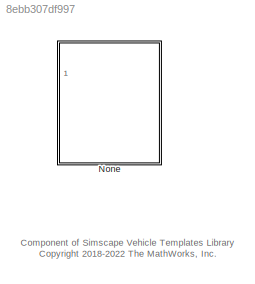
MODEL slx_8ebb307df997
KIND library
CONFIG AbsTol = auto
CONFIG EnableMultiTasking = off
CONFIG FixedStep = auto
CONFIG MaxStep = auto
CONFIG MinStep = auto
CONFIG RelTol = 1e-3
CONFIG SampleTimeConstraint = Unconstrained
CONFIG SolverName = VariableStepAuto
CONFIG StartTime = 0.0
CONFIG StopTime = 10.0
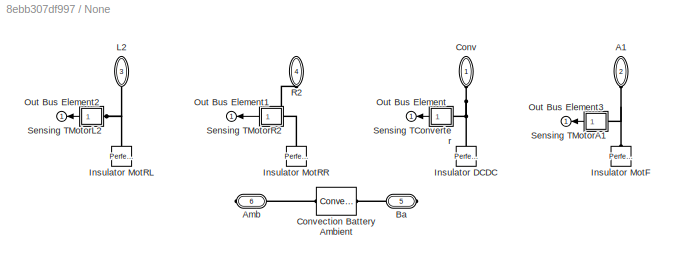
BLOCK [SubSystem] None
  Ports = [0, 1, 0, 0, 0, 4, 2]
  RequestExecContextInheritance = off
  VariantControl = None
BLOCK [PMIOPort] None/A1
  NameLocation = left
  Port = 2
  Side = Left
BLOCK [PMIOPort] None/Amb
  Port = 6
  Side = Right
BLOCK [PMIOPort] None/Ba
  Port = 5
  Side = Right
BLOCK [PMIOPort] None/Conv
  NameLocation = right
  Side = Left
BLOCK [Reference] None/Convection Battery Ambient  REF=fl_lib/Thermal/Thermal Elements/Convective Heat
Transfer
  Ports = [0, 0, 0, 0, 0, 1, 1]
  SourceBlock = fl_lib/Thermal/Thermal Elements/Convective Heat\nTransfer
  SourceProductBaseCode = PW,SS,VE
  SourceType = Convective Heat\nTransfer
BLOCK [Reference] None/Insulator DCDC  REF=fl_lib/Thermal/Thermal Elements/Perfect Insulator
  NameLocation = left
  Ports = [0, 0, 0, 0, 0, 1]
  SourceBlock = fl_lib/Thermal/Thermal Elements/Perfect Insulator
  SourceProductBaseCode = PW,SS,VE
  SourceType = Perfect Insulator
BLOCK [Reference] None/Insulator MotF  REF=fl_lib/Thermal/Thermal Elements/Perfect Insulator
  NameLocation = left
  Ports = [0, 0, 0, 0, 0, 1]
  SourceBlock = fl_lib/Thermal/Thermal Elements/Perfect Insulator
  SourceProductBaseCode = PW,SS,VE
  SourceType = Perfect Insulator
BLOCK [Reference] None/Insulator MotRL  REF=fl_lib/Thermal/Thermal Elements/Perfect Insulator
  NameLocation = left
  Ports = [0, 0, 0, 0, 0, 1]
  SourceBlock = fl_lib/Thermal/Thermal Elements/Perfect Insulator
  SourceProductBaseCode = PW,SS,VE
  SourceType = Perfect Insulator
BLOCK [Reference] None/Insulator MotRR  REF=fl_lib/Thermal/Thermal Elements/Perfect Insulator
  NameLocation = left
  Ports = [0, 0, 0, 0, 0, 1]
  SourceBlock = fl_lib/Thermal/Thermal Elements/Perfect Insulator
  SourceProductBaseCode = PW,SS,VE
  SourceType = Perfect Insulator
BLOCK [PMIOPort] None/L2
  NameLocation = left
  Port = 3
  Side = Left
BLOCK [Outport] None/Out Bus Element
  NameLocation = top
  VectorParamsAs1DForOutWhenUnconnected = off
BLOCK [Outport] None/Out Bus Element1
  NameLocation = top
  VectorParamsAs1DForOutWhenUnconnected = off
BLOCK [Outport] None/Out Bus Element2
  NameLocation = top
  VectorParamsAs1DForOutWhenUnconnected = off
BLOCK [Outport] None/Out Bus Element3
  VectorParamsAs1DForOutWhenUnconnected = off
BLOCK [PMIOPort] None/R2
  NameLocation = right
  Port = 4
  Side = Left
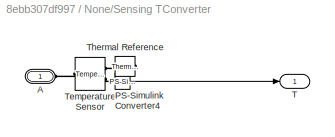
BLOCK [SubSystem] None/Sensing TConverter
  Ports = [0, 1, 0, 0, 0, 1]
  RequestExecContextInheritance = off
BLOCK [PMIOPort] None/Sensing TConverter/A
  Side = Left
BLOCK [Reference] None/Sensing TConverter/PS-Simulink Converter4  REF=nesl_utility/PS-Simulink
Converter
  Ports = [0, 1, 0, 0, 0, 1]
  SourceBlock = nesl_utility/PS-Simulink\nConverter
  SourceProductBaseCode = SS,PW,VE
  SourceType = PS-Simulink\nConverter
BLOCK [Outport] None/Sensing TConverter/T
  VectorParamsAs1DForOutWhenUnconnected = off
BLOCK [Reference] None/Sensing TConverter/Temperature Sensor  REF=fl_lib/Thermal/Thermal Sensors/Temperature Sensor
  Ports = [0, 0, 0, 0, 0, 1, 2]
  SourceBlock = fl_lib/Thermal/Thermal Sensors/Temperature Sensor
  SourceProductBaseCode = PW,SS,VE
  SourceType = Temperature Sensor
BLOCK [Reference] None/Sensing TConverter/Thermal Reference  REF=fl_lib/Thermal/Thermal Elements/Thermal Reference
  NameLocation = top
  Ports = [0, 0, 0, 0, 0, 1]
  SourceBlock = fl_lib/Thermal/Thermal Elements/Thermal Reference
  SourceProductBaseCode = PW,SS,VE
  SourceType = Thermal Reference
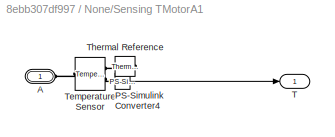
BLOCK [SubSystem] None/Sensing TMotorA1
  Ports = [0, 1, 0, 0, 0, 1]
  RequestExecContextInheritance = off
BLOCK [PMIOPort] None/Sensing TMotorA1/A
  Side = Left
BLOCK [Reference] None/Sensing TMotorA1/PS-Simulink Converter4  REF=nesl_utility/PS-Simulink
Converter
  Ports = [0, 1, 0, 0, 0, 1]
  SourceBlock = nesl_utility/PS-Simulink\nConverter
  SourceProductBaseCode = SS,PW,VE
  SourceType = PS-Simulink\nConverter
BLOCK [Outport] None/Sensing TMotorA1/T
  VectorParamsAs1DForOutWhenUnconnected = off
BLOCK [Reference] None/Sensing TMotorA1/Temperature Sensor  REF=fl_lib/Thermal/Thermal Sensors/Temperature Sensor
  Ports = [0, 0, 0, 0, 0, 1, 2]
  SourceBlock = fl_lib/Thermal/Thermal Sensors/Temperature Sensor
  SourceProductBaseCode = PW,SS,VE
  SourceType = Temperature Sensor
BLOCK [Reference] None/Sensing TMotorA1/Thermal Reference  REF=fl_lib/Thermal/Thermal Elements/Thermal Reference
  NameLocation = top
  Ports = [0, 0, 0, 0, 0, 1]
  SourceBlock = fl_lib/Thermal/Thermal Elements/Thermal Reference
  SourceProductBaseCode = PW,SS,VE
  SourceType = Thermal Reference
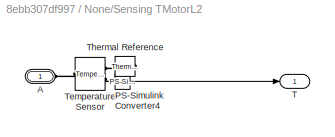
BLOCK [SubSystem] None/Sensing TMotorL2
  Ports = [0, 1, 0, 0, 0, 1]
  RequestExecContextInheritance = off
BLOCK [PMIOPort] None/Sensing TMotorL2/A
  Side = Left
BLOCK [Reference] None/Sensing TMotorL2/PS-Simulink Converter4  REF=nesl_utility/PS-Simulink
Converter
  Ports = [0, 1, 0, 0, 0, 1]
  SourceBlock = nesl_utility/PS-Simulink\nConverter
  SourceProductBaseCode = SS,PW,VE
  SourceType = PS-Simulink\nConverter
BLOCK [Outport] None/Sensing TMotorL2/T
  VectorParamsAs1DForOutWhenUnconnected = off
BLOCK [Reference] None/Sensing TMotorL2/Temperature Sensor  REF=fl_lib/Thermal/Thermal Sensors/Temperature Sensor
  Ports = [0, 0, 0, 0, 0, 1, 2]
  SourceBlock = fl_lib/Thermal/Thermal Sensors/Temperature Sensor
  SourceProductBaseCode = PW,SS,VE
  SourceType = Temperature Sensor
BLOCK [Reference] None/Sensing TMotorL2/Thermal Reference  REF=fl_lib/Thermal/Thermal Elements/Thermal Reference
  NameLocation = top
  Ports = [0, 0, 0, 0, 0, 1]
  SourceBlock = fl_lib/Thermal/Thermal Elements/Thermal Reference
  SourceProductBaseCode = PW,SS,VE
  SourceType = Thermal Reference
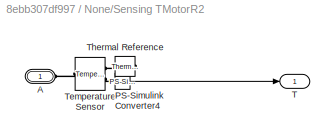
BLOCK [SubSystem] None/Sensing TMotorR2
  Ports = [0, 1, 0, 0, 0, 1]
  RequestExecContextInheritance = off
BLOCK [PMIOPort] None/Sensing TMotorR2/A
  Side = Left
BLOCK [Reference] None/Sensing TMotorR2/PS-Simulink Converter4  REF=nesl_utility/PS-Simulink
Converter
  Ports = [0, 1, 0, 0, 0, 1]
  SourceBlock = nesl_utility/PS-Simulink\nConverter
  SourceProductBaseCode = SS,PW,VE
  SourceType = PS-Simulink\nConverter
BLOCK [Outport] None/Sensing TMotorR2/T
  VectorParamsAs1DForOutWhenUnconnected = off
BLOCK [Reference] None/Sensing TMotorR2/Temperature Sensor  REF=fl_lib/Thermal/Thermal Sensors/Temperature Sensor
  Ports = [0, 0, 0, 0, 0, 1, 2]
  SourceBlock = fl_lib/Thermal/Thermal Sensors/Temperature Sensor
  SourceProductBaseCode = PW,SS,VE
  SourceType = Temperature Sensor
BLOCK [Reference] None/Sensing TMotorR2/Thermal Reference  REF=fl_lib/Thermal/Thermal Elements/Thermal Reference
  NameLocation = top
  Ports = [0, 0, 0, 0, 0, 1]
  SourceBlock = fl_lib/Thermal/Thermal Elements/Thermal Reference
  SourceProductBaseCode = PW,SS,VE
  SourceType = Thermal Reference
ANNOTATION (root): Component of Simscape Vehicle Templates Library <copyright redacted>
LINE None/Sensing TConverter/PS-Simulink Converter4:1 -> None/Sensing TConverter/T:1
LINE None/Sensing TConverter:1 -> None/Out Bus Element:1
LINE None/Sensing TMotorA1/PS-Simulink Converter4:1 -> None/Sensing TMotorA1/T:1
LINE None/Sensing TMotorA1:1 -> None/Out Bus Element3:1
LINE None/Sensing TMotorL2/PS-Simulink Converter4:1 -> None/Sensing TMotorL2/T:1
LINE None/Sensing TMotorL2:1 -> None/Out Bus Element2:1
LINE None/Sensing TMotorR2/PS-Simulink Converter4:1 -> None/Sensing TMotorR2/T:1
LINE None/Sensing TMotorR2:1 -> None/Out Bus Element1:1
PNET net1: None/A1:RConn1 -- None/Insulator MotF:LConn1 -- None/Sensing TMotorA1:LConn1
PLINE None/Amb:RConn1 -- None/Convection Battery Ambient:RConn1
PLINE None/Ba:RConn1 -- None/Convection Battery Ambient:LConn1
PNET net2: None/Conv:RConn1 -- None/Insulator DCDC:LConn1 -- None/Sensing TConverter:LConn1
PNET net3: None/Insulator MotRL:LConn1 -- None/L2:RConn1 -- None/Sensing TMotorL2:LConn1
PNET net4: None/Insulator MotRR:LConn1 -- None/R2:RConn1 -- None/Sensing TMotorR2:LConn1
PLINE None/Sensing TConverter/A:RConn1 -- None/Sensing TConverter/Temperature Sensor:LConn1
PLINE None/Sensing TConverter/PS-Simulink Converter4:LConn1 -- None/Sensing TConverter/Temperature Sensor:RConn2
PLINE None/Sensing TConverter/Temperature Sensor:RConn1 -- None/Sensing TConverter/Thermal Reference:LConn1
PLINE None/Sensing TMotorA1/A:RConn1 -- None/Sensing TMotorA1/Temperature Sensor:LConn1
PLINE None/Sensing TMotorA1/PS-Simulink Converter4:LConn1 -- None/Sensing TMotorA1/Temperature Sensor:RConn2
PLINE None/Sensing TMotorA1/Temperature Sensor:RConn1 -- None/Sensing TMotorA1/Thermal Reference:LConn1
PLINE None/Sensing TMotorL2/A:RConn1 -- None/Sensing TMotorL2/Temperature Sensor:LConn1
PLINE None/Sensing TMotorL2/PS-Simulink Converter4:LConn1 -- None/Sensing TMotorL2/Temperature Sensor:RConn2
PLINE None/Sensing TMotorL2/Temperature Sensor:RConn1 -- None/Sensing TMotorL2/Thermal Reference:LConn1
PLINE None/Sensing TMotorR2/A:RConn1 -- None/Sensing TMotorR2/Temperature Sensor:LConn1
PLINE None/Sensing TMotorR2/PS-Simulink Converter4:LConn1 -- None/Sensing TMotorR2/Temperature Sensor:RConn2
PLINE None/Sensing TMotorR2/Temperature Sensor:RConn1 -- None/Sensing TMotorR2/Thermal Reference:LConn1
note: PNET lines group multi-terminal physical nets as a canonical sorted terminal list (undirected conserving connections); 2-terminal nets keep the pairwise PLINE form
